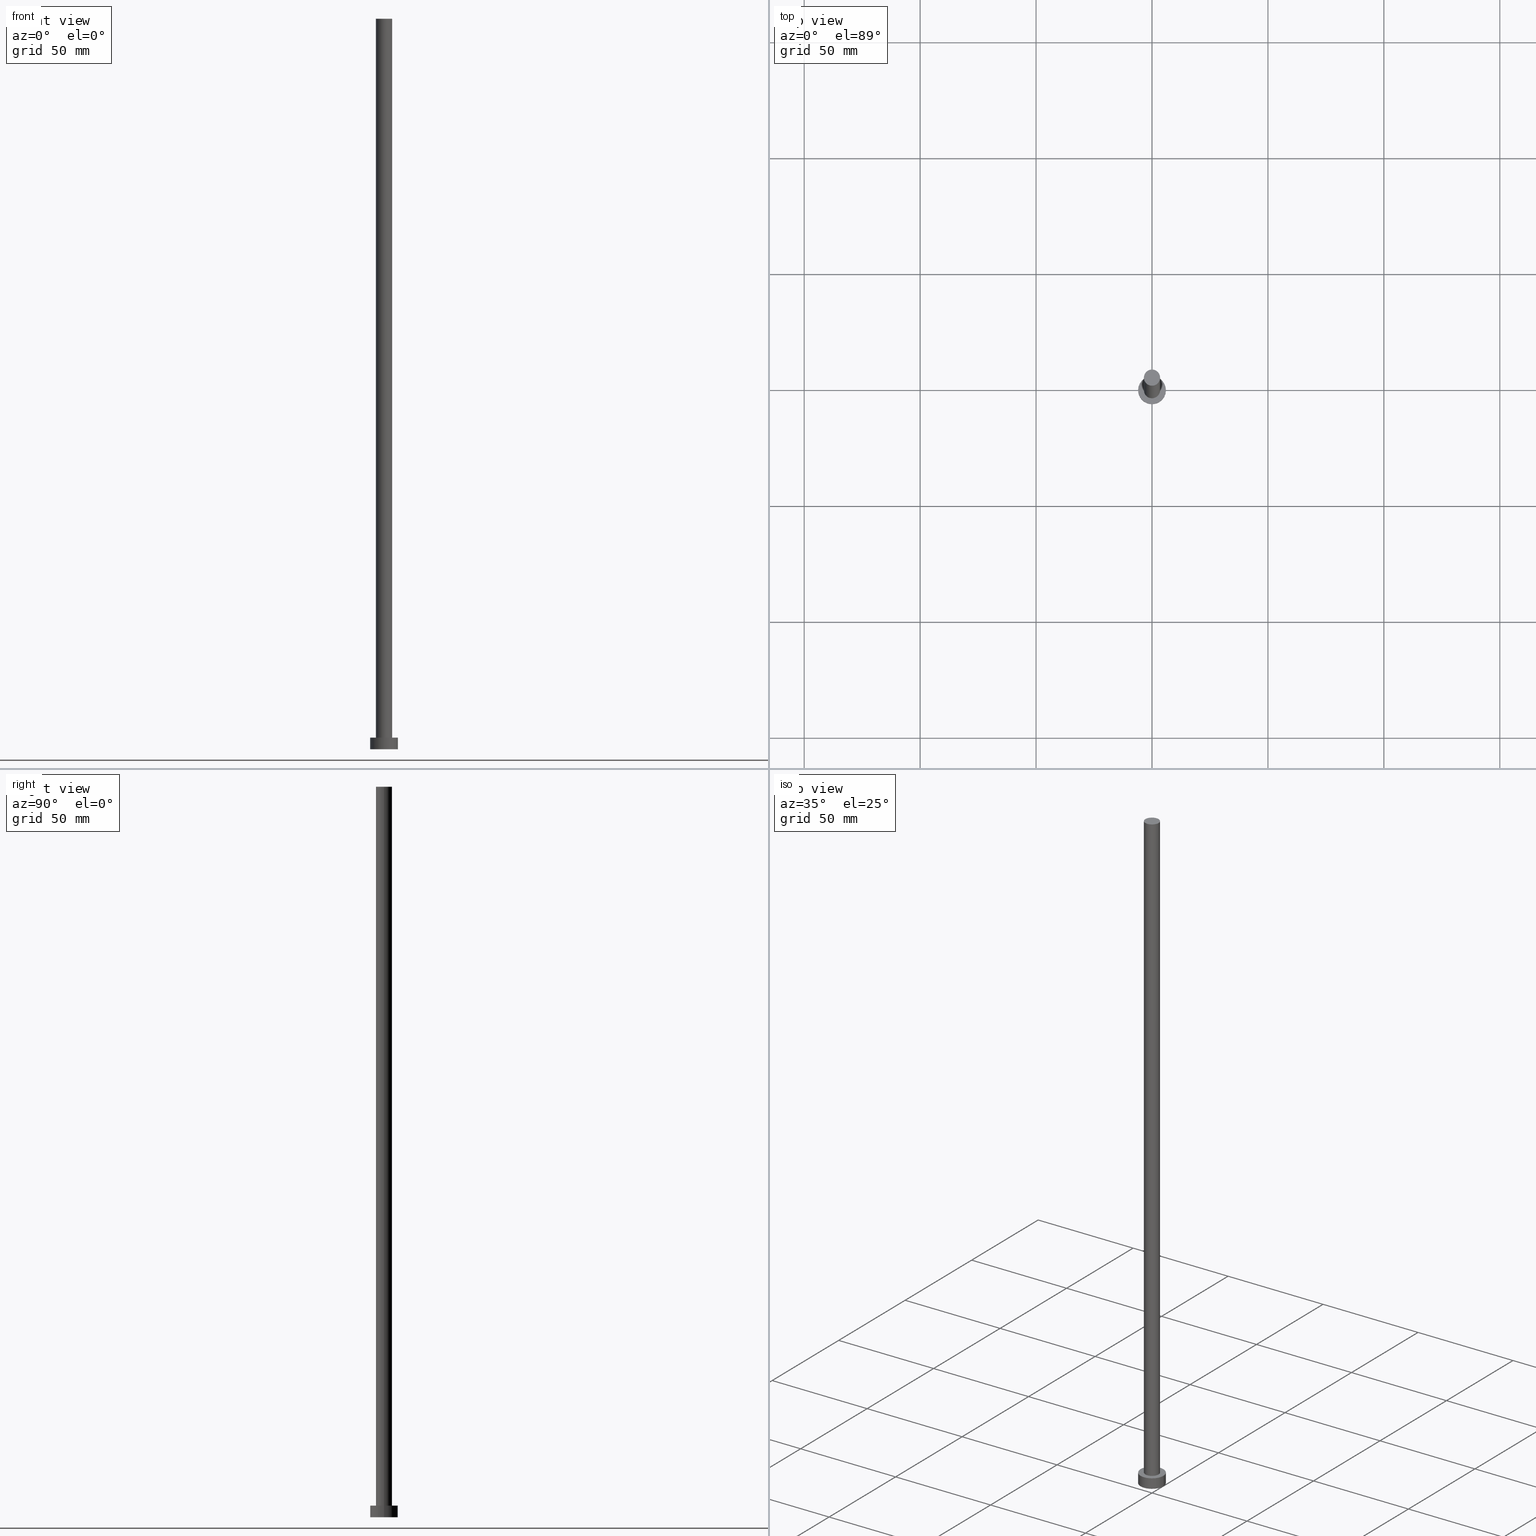
[diagram: canonical four-view strip — front | top / right | iso, engineering-drawing reading convention]
A machine part, canonical four-view strip (front | top / right | iso — engineering-drawing reading convention). The complete STEP part file that produces these views, byte-faithful:
ISO-10303-21;
HEADER;
FILE_DESCRIPTION (( 'STEP AP203' ),
    '1' );
FILE_NAME ('e96d.STEP',
    '2023-02-12T11:29:01',
    ( '' ),
    ( '' ),
    'SwSTEP 2.0',
    'SolidWorks 2019',
    '' );
FILE_SCHEMA (( 'CONFIG_CONTROL_DESIGN' ));
ENDSEC;

DATA;
#1 = DIRECTION ( 'NONE',  ( 0.000000000000000000, 0.000000000000000000, 1.000000000000000000 ) ) ;
#2 = ADVANCED_FACE ( 'NONE', ( #240 ), #137, .T. ) ;
#3 = CC_DESIGN_DATE_AND_TIME_ASSIGNMENT ( #205, #33, ( #111 ) ) ;
#4 = ORIENTED_EDGE ( 'NONE', *, *, #105, .T. ) ;
#5 = CIRCLE ( 'NONE', #24, 6.000000000000000888 ) ;
#6 = CC_DESIGN_SECURITY_CLASSIFICATION ( #139, ( #131 ) ) ;
#7 = PERSON_AND_ORGANIZATION_ROLE ( 'creator' ) ;
#8 = EDGE_LOOP ( 'NONE', ( #130, #37, #157, #100 ) ) ;
#9 = ORIENTED_EDGE ( 'NONE', *, *, #36, .F. ) ;
#10 = DIRECTION ( 'NONE',  ( -0.000000000000000000, -0.000000000000000000, -1.000000000000000000 ) ) ;
#11 = CARTESIAN_POINT ( 'NONE',  ( 0.000000000000000000, 0.000000000000000000, 0.000000000000000000 ) ) ;
#12 = CC_DESIGN_APPROVAL ( #187, ( #111 ) ) ;
#13 = APPROVAL ( #156, 'NEUR�EN�' ) ;
#14 = CARTESIAN_POINT ( 'NONE',  ( 3.500000000000000000, 4.286263797015736595E-16, 315.0000000000000000 ) ) ;
#15 = FACE_OUTER_BOUND ( 'NONE', #231, .T. ) ;
#16 = PLANE ( 'NONE',  #234 ) ;
#17 = ORIENTED_EDGE ( 'NONE', *, *, #232, .F. ) ;
#18 = DIRECTION ( 'NONE',  ( -0.000000000000000000, -0.000000000000000000, -1.000000000000000000 ) ) ;
#19 = CYLINDRICAL_SURFACE ( 'NONE', #74, 6.000000000000000888 ) ;
#20 = ADVANCED_FACE ( 'NONE', ( #174 ), #19, .T. ) ;
#21 = ORIENTED_EDGE ( 'NONE', *, *, #172, .T. ) ;
#22 = DIRECTION ( 'NONE',  ( -1.000000000000000000, 0.000000000000000000, 0.000000000000000000 ) ) ;
#23 = DIRECTION ( 'NONE',  ( -1.000000000000000000, 0.000000000000000000, 0.000000000000000000 ) ) ;
#24 = AXIS2_PLACEMENT_3D ( 'NONE', #63, #47, #64 ) ;
#25 = CIRCLE ( 'NONE', #95, 6.000000000000000888 ) ;
#26 = DATE_TIME_ROLE ( 'classification_date' ) ;
#27 = ORIENTED_EDGE ( 'NONE', *, *, #172, .F. ) ;
#28 = DIRECTION ( 'NONE',  ( 0.000000000000000000, 0.000000000000000000, 1.000000000000000000 ) ) ;
#29 = COORDINATED_UNIVERSAL_TIME_OFFSET ( 1, 0, .AHEAD. ) ;
#30 = APPLICATION_CONTEXT ( 'configuration controlled 3d designs of mechanical parts and assemblies' ) ;
#31 = FACE_BOUND ( 'NONE', #69, .T. ) ;
#32 = ORIENTED_EDGE ( 'NONE', *, *, #225, .F. ) ;
#33 = DATE_TIME_ROLE ( 'creation_date' ) ;
#34 = CARTESIAN_POINT ( 'NONE',  ( 6.000000000000000888, 7.347880794884120722E-16, 5.000000000000000000 ) ) ;
#35 = CARTESIAN_POINT ( 'NONE',  ( 0.000000000000000000, 0.000000000000000000, 315.0000000000000000 ) ) ;
#36 = EDGE_CURVE ( 'NONE', #134, #113, #189, .T. ) ;
#37 = ORIENTED_EDGE ( 'NONE', *, *, #75, .F. ) ;
#38 = CC_DESIGN_DATE_AND_TIME_ASSIGNMENT ( #200, #26, ( #139 ) ) ;
#39 = AXIS2_PLACEMENT_3D ( 'NONE', #241, #85, #165 ) ;
#40 = CC_DESIGN_APPROVAL ( #129, ( #131 ) ) ;
#41 = PERSON_AND_ORGANIZATION_ROLE ( 'classification_officer' ) ;
#42 = CC_DESIGN_APPROVAL ( #13, ( #139 ) ) ;
#43 = CARTESIAN_POINT ( 'NONE',  ( 0.000000000000000000, 0.000000000000000000, 5.000000000000000000 ) ) ;
#44 = CALENDAR_DATE ( 2023, 12, 2 ) ;
#45 = VERTEX_POINT ( 'NONE', #104 ) ;
#46 = DIRECTION ( 'NONE',  ( 1.000000000000000000, 0.000000000000000000, 0.000000000000000000 ) ) ;
#47 = DIRECTION ( 'NONE',  ( 0.000000000000000000, 0.000000000000000000, 1.000000000000000000 ) ) ;
#48 = PLANE ( 'NONE',  #82 ) ;
#49 = LOCAL_TIME ( 12, 29, 1.000000000000000000, #66 ) ;
#50 = DIRECTION ( 'NONE',  ( -1.000000000000000000, 0.000000000000000000, 0.000000000000000000 ) ) ;
#51 = ORIENTED_EDGE ( 'NONE', *, *, #236, .F. ) ;
#52 = CARTESIAN_POINT ( 'NONE',  ( 0.000000000000000000, 0.000000000000000000, 315.0000000000000000 ) ) ;
#53 = AXIS2_PLACEMENT_3D ( 'NONE', #169, #235, #132 ) ;
#54 = FACE_OUTER_BOUND ( 'NONE', #94, .T. ) ;
#55 = VECTOR ( 'NONE', #10, 1000.000000000000000 ) ;
#56 = LOCAL_TIME ( 12, 29, 1.000000000000000000, #97 ) ;
#57 = DIRECTION ( 'NONE',  ( 1.000000000000000000, 0.000000000000000000, 0.000000000000000000 ) ) ;
#58 = CARTESIAN_POINT ( 'NONE',  ( 0.000000000000000000, 0.000000000000000000, 5.000000000000000000 ) ) ;
#59 = PERSON_AND_ORGANIZATION ( #194, #108 ) ;
#60 = EDGE_LOOP ( 'NONE', ( #51, #4, #125, #32 ) ) ;
#61 = CARTESIAN_POINT ( 'NONE',  ( 0.000000000000000000, 0.000000000000000000, 5.000000000000000000 ) ) ;
#62 = CALENDAR_DATE ( 2023, 12, 2 ) ;
#63 = CARTESIAN_POINT ( 'NONE',  ( 0.000000000000000000, 0.000000000000000000, 5.000000000000000000 ) ) ;
#64 = DIRECTION ( 'NONE',  ( 1.000000000000000000, 0.000000000000000000, 0.000000000000000000 ) ) ;
#65 = FACE_OUTER_BOUND ( 'NONE', #8, .T. ) ;
#66 = COORDINATED_UNIVERSAL_TIME_OFFSET ( 1, 0, .AHEAD. ) ;
#67 = DIRECTION ( 'NONE',  ( 1.000000000000000000, 0.000000000000000000, -0.000000000000000000 ) ) ;
#68 = ADVANCED_FACE ( 'NONE', ( #31, #15 ), #48, .T. ) ;
#69 = EDGE_LOOP ( 'NONE', ( #204, #196 ) ) ;
#70 =( LENGTH_UNIT ( ) NAMED_UNIT ( * ) SI_UNIT ( .MILLI., .METRE. ) );
#71 = LOCAL_TIME ( 12, 29, 1.000000000000000000, #119 ) ;
#72 = CARTESIAN_POINT ( 'NONE',  ( 0.000000000000000000, 0.000000000000000000, 0.000000000000000000 ) ) ;
#73 = APPLICATION_CONTEXT ( 'configuration controlled 3d designs of mechanical parts and assemblies' ) ;
#74 = AXIS2_PLACEMENT_3D ( 'NONE', #58, #115, #23 ) ;
#75 = EDGE_CURVE ( 'NONE', #136, #244, #5, .T. ) ;
#76 = UNCERTAINTY_MEASURE_WITH_UNIT (LENGTH_MEASURE( 1.000000000000000082E-05 ), #70, 'distance_accuracy_value', 'NONE');
#77 = APPROVAL_DATE_TIME ( #142, #129 ) ;
#78 = DIRECTION ( 'NONE',  ( 0.000000000000000000, 0.000000000000000000, 1.000000000000000000 ) ) ;
#79 = PRODUCT_DEFINITION_SHAPE ( 'NONE', 'NONE',  #111 ) ;
#80 = APPROVAL_DATE_TIME ( #175, #13 ) ;
#81 = ORIENTED_EDGE ( 'NONE', *, *, #232, .T. ) ;
#82 = AXIS2_PLACEMENT_3D ( 'NONE', #61, #127, #67 ) ;
#83 = CARTESIAN_POINT ( 'NONE',  ( -6.000000000000000888, 0.000000000000000000, 0.000000000000000000 ) ) ;
#84 = APPLICATION_PROTOCOL_DEFINITION ( 'international standard', 'config_control_design', 1994, #73 ) ;
#85 = DIRECTION ( 'NONE',  ( 0.000000000000000000, 0.000000000000000000, 1.000000000000000000 ) ) ;
#86 = PERSON_AND_ORGANIZATION ( #194, #108 ) ;
#87 = DIRECTION ( 'NONE',  ( -0.000000000000000000, -0.000000000000000000, -1.000000000000000000 ) ) ;
#88 = CC_DESIGN_PERSON_AND_ORGANIZATION_ASSIGNMENT ( #179, #145, ( #131 ) ) ;
#89 = APPROVAL_PERSON_ORGANIZATION ( #213, #13, #192 ) ;
#90 = PRODUCT_RELATED_PRODUCT_CATEGORY ( 'detail', '', ( #138 ) ) ;
#91 = CIRCLE ( 'NONE', #162, 3.500000000000000000 ) ;
#92 = DIRECTION ( 'NONE',  ( 1.000000000000000000, 0.000000000000000000, -0.000000000000000000 ) ) ;
#93 = COORDINATED_UNIVERSAL_TIME_OFFSET ( 1, 0, .AHEAD. ) ;
#94 = EDGE_LOOP ( 'NONE', ( #9, #197 ) ) ;
#95 = AXIS2_PLACEMENT_3D ( 'NONE', #11, #78, #160 ) ;
#96 = PERSON_AND_ORGANIZATION ( #194, #108 ) ;
#97 = COORDINATED_UNIVERSAL_TIME_OFFSET ( 1, 0, .AHEAD. ) ;
#98 = CYLINDRICAL_SURFACE ( 'NONE', #193, 3.500000000000000000 ) ;
#99 = EDGE_CURVE ( 'NONE', #210, #173, #251, .T. ) ;
#100 = ORIENTED_EDGE ( 'NONE', *, *, #36, .T. ) ;
#101 = CARTESIAN_POINT ( 'NONE',  ( 3.500000000000000000, 4.286263797015736595E-16, 315.0000000000000000 ) ) ;
#102 = APPROVAL_ROLE ( '' ) ;
#103 = ORIENTED_EDGE ( 'NONE', *, *, #216, .T. ) ;
#104 = CARTESIAN_POINT ( 'NONE',  ( 3.500000000000000000, 4.286263797015736595E-16, 5.000000000000000000 ) ) ;
#105 = EDGE_CURVE ( 'NONE', #244, #113, #224, .T. ) ;
#106 = CARTESIAN_POINT ( 'NONE',  ( 0.000000000000000000, 0.000000000000000000, 315.0000000000000000 ) ) ;
#107 = CLOSED_SHELL ( 'NONE', ( #2, #20, #140, #68, #230, #176, #118 ) ) ;
#108 = ORGANIZATION ( 'NEUR�EN�', 'NEUR�EN�', '' ) ;
#109 = ORIENTED_EDGE ( 'NONE', *, *, #99, .T. ) ;
#110 = ORIENTED_EDGE ( 'NONE', *, *, #75, .T. ) ;
#111 = PRODUCT_DEFINITION ( 'NEZN�M�', '', #131, #128 ) ;
#112 =( GEOMETRIC_REPRESENTATION_CONTEXT ( 3 ) GLOBAL_UNCERTAINTY_ASSIGNED_CONTEXT ( ( #76 ) ) GLOBAL_UNIT_ASSIGNED_CONTEXT ( ( #70, #255, #220 ) ) REPRESENTATION_CONTEXT ( 'NONE', 'WORKASPACE' ) );
#113 = VERTEX_POINT ( 'NONE', #161 ) ;
#114 = DIRECTION ( 'NONE',  ( -0.000000000000000000, -0.000000000000000000, -1.000000000000000000 ) ) ;
#115 = DIRECTION ( 'NONE',  ( -0.000000000000000000, -0.000000000000000000, -1.000000000000000000 ) ) ;
#116 = VERTEX_POINT ( 'NONE', #147 ) ;
#117 = ORIENTED_EDGE ( 'NONE', *, *, #170, .T. ) ;
#118 = ADVANCED_FACE ( 'NONE', ( #143 ), #180, .T. ) ;
#119 = COORDINATED_UNIVERSAL_TIME_OFFSET ( 1, 0, .AHEAD. ) ;
#120 = FACE_OUTER_BOUND ( 'NONE', #146, .T. ) ;
#121 = PERSON_AND_ORGANIZATION ( #194, #108 ) ;
#122 = ORIENTED_EDGE ( 'NONE', *, *, #148, .F. ) ;
#123 = CC_DESIGN_PERSON_AND_ORGANIZATION_ASSIGNMENT ( #96, #7, ( #111 ) ) ;
#124 = CIRCLE ( 'NONE', #53, 6.000000000000000888 ) ;
#125 = ORIENTED_EDGE ( 'NONE', *, *, #191, .T. ) ;
#126 = DIRECTION ( 'NONE',  ( 0.000000000000000000, 0.000000000000000000, 1.000000000000000000 ) ) ;
#127 = DIRECTION ( 'NONE',  ( 0.000000000000000000, 0.000000000000000000, 1.000000000000000000 ) ) ;
#128 = DESIGN_CONTEXT ( 'detailed design', #73, 'design' ) ;
#129 = APPROVAL ( #166, 'NEUR�EN�' ) ;
#130 = ORIENTED_EDGE ( 'NONE', *, *, #105, .F. ) ;
#131 = PRODUCT_DEFINITION_FORMATION_WITH_SPECIFIED_SOURCE ( 'LIBOVOLN�', '', #138, .NOT_KNOWN. ) ;
#132 = DIRECTION ( 'NONE',  ( 1.000000000000000000, 0.000000000000000000, 0.000000000000000000 ) ) ;
#133 = APPLICATION_PROTOCOL_DEFINITION ( 'international standard', 'config_control_design', 1994, #30 ) ;
#134 = VERTEX_POINT ( 'NONE', #83 ) ;
#135 = CC_DESIGN_PERSON_AND_ORGANIZATION_ASSIGNMENT ( #243, #41, ( #139 ) ) ;
#136 = VERTEX_POINT ( 'NONE', #249 ) ;
#137 = CYLINDRICAL_SURFACE ( 'NONE', #228, 3.500000000000000000 ) ;
#138 = PRODUCT ( 'e96d', 'e96d', '', ( #217 ) ) ;
#139 = SECURITY_CLASSIFICATION ( '', '', #226 ) ;
#140 = ADVANCED_FACE ( 'NONE', ( #65 ), #245, .T. ) ;
#141 = DIRECTION ( 'NONE',  ( -1.000000000000000000, 0.000000000000000000, 0.000000000000000000 ) ) ;
#142 = DATE_AND_TIME ( #62, #49 ) ;
#143 = FACE_OUTER_BOUND ( 'NONE', #218, .T. ) ;
#144 = DIRECTION ( 'NONE',  ( 0.000000000000000000, 0.000000000000000000, 1.000000000000000000 ) ) ;
#145 = PERSON_AND_ORGANIZATION_ROLE ( 'creator' ) ;
#146 = EDGE_LOOP ( 'NONE', ( #122, #195, #21, #103 ) ) ;
#147 = CARTESIAN_POINT ( 'NONE',  ( -3.500000000000000000, 0.000000000000000000, 5.000000000000000000 ) ) ;
#148 = EDGE_CURVE ( 'NONE', #173, #45, #227, .T. ) ;
#149 = ORIENTED_EDGE ( 'NONE', *, *, #236, .T. ) ;
#150 = CARTESIAN_POINT ( 'NONE',  ( -6.000000000000000888, 0.000000000000000000, 5.000000000000000000 ) ) ;
#151 = LOCAL_TIME ( 12, 29, 1.000000000000000000, #29 ) ;
#152 = DIRECTION ( 'NONE',  ( 0.000000000000000000, 0.000000000000000000, 1.000000000000000000 ) ) ;
#153 = CC_DESIGN_PERSON_AND_ORGANIZATION_ASSIGNMENT ( #59, #178, ( #138 ) ) ;
#154 = DIRECTION ( 'NONE',  ( 1.000000000000000000, 0.000000000000000000, 0.000000000000000000 ) ) ;
#155 = AXIS2_PLACEMENT_3D ( 'NONE', #43, #144, #46 ) ;
#156 = APPROVAL_STATUS ( 'not_yet_approved' ) ;
#157 = ORIENTED_EDGE ( 'NONE', *, *, #225, .T. ) ;
#158 = APPROVAL_PERSON_ORGANIZATION ( #86, #129, #250 ) ;
#159 = PERSON_AND_ORGANIZATION_ROLE ( 'design_supplier' ) ;
#160 = DIRECTION ( 'NONE',  ( 1.000000000000000000, 0.000000000000000000, 0.000000000000000000 ) ) ;
#161 = CARTESIAN_POINT ( 'NONE',  ( 6.000000000000000888, 7.347880794884120722E-16, 0.000000000000000000 ) ) ;
#162 = AXIS2_PLACEMENT_3D ( 'NONE', #52, #1, #154 ) ;
#163 = CARTESIAN_POINT ( 'NONE',  ( -3.500000000000000000, 0.000000000000000000, 315.0000000000000000 ) ) ;
#164 = APPROVAL_DATE_TIME ( #246, #187 ) ;
#165 = DIRECTION ( 'NONE',  ( 1.000000000000000000, 0.000000000000000000, 0.000000000000000000 ) ) ;
#166 = APPROVAL_STATUS ( 'not_yet_approved' ) ;
#167 = DIRECTION ( 'NONE',  ( 0.000000000000000000, 0.000000000000000000, 1.000000000000000000 ) ) ;
#168 = DIRECTION ( 'NONE',  ( 1.000000000000000000, 0.000000000000000000, 0.000000000000000000 ) ) ;
#169 = CARTESIAN_POINT ( 'NONE',  ( 0.000000000000000000, 0.000000000000000000, 5.000000000000000000 ) ) ;
#170 = EDGE_CURVE ( 'NONE', #45, #116, #182, .T. ) ;
#171 = ORIENTED_EDGE ( 'NONE', *, *, #148, .T. ) ;
#172 = EDGE_CURVE ( 'NONE', #210, #116, #229, .T. ) ;
#173 = VERTEX_POINT ( 'NONE', #14 ) ;
#174 = FACE_OUTER_BOUND ( 'NONE', #60, .T. ) ;
#175 = DATE_AND_TIME ( #177, #190 ) ;
#176 = ADVANCED_FACE ( 'NONE', ( #120 ), #98, .T. ) ;
#177 = CALENDAR_DATE ( 2023, 12, 2 ) ;
#178 = PERSON_AND_ORGANIZATION_ROLE ( 'design_owner' ) ;
#179 = PERSON_AND_ORGANIZATION ( #194, #108 ) ;
#180 = PLANE ( 'NONE',  #198 ) ;
#181 = CARTESIAN_POINT ( 'NONE',  ( -3.500000000000000000, 0.000000000000000000, 315.0000000000000000 ) ) ;
#182 = CIRCLE ( 'NONE', #155, 3.500000000000000000 ) ;
#183 = AXIS2_PLACEMENT_3D ( 'NONE', #201, #28, #168 ) ;
#184 = CALENDAR_DATE ( 2023, 12, 2 ) ;
#185 = DIRECTION ( 'NONE',  ( -0.000000000000000000, -0.000000000000000000, -1.000000000000000000 ) ) ;
#186 = APPROVAL_STATUS ( 'not_yet_approved' ) ;
#187 = APPROVAL ( #186, 'NEUR�EN�' ) ;
#188 = DIRECTION ( 'NONE',  ( -0.000000000000000000, -0.000000000000000000, -1.000000000000000000 ) ) ;
#189 = CIRCLE ( 'NONE', #39, 6.000000000000000888 ) ;
#190 = LOCAL_TIME ( 12, 29, 1.000000000000000000, #93 ) ;
#191 = EDGE_CURVE ( 'NONE', #113, #134, #25, .T. ) ;
#192 = APPROVAL_ROLE ( '' ) ;
#193 = AXIS2_PLACEMENT_3D ( 'NONE', #35, #188, #141 ) ;
#194 = PERSON ( 'NEUR�EN�', 'NEUR�EN�', 'NEUR�EN�', ('NEUR�EN�'), ('NEUR�EN�'), ('NEUR�EN�') ) ;
#195 = ORIENTED_EDGE ( 'NONE', *, *, #99, .F. ) ;
#196 = ORIENTED_EDGE ( 'NONE', *, *, #170, .F. ) ;
#197 = ORIENTED_EDGE ( 'NONE', *, *, #191, .F. ) ;
#198 = AXIS2_PLACEMENT_3D ( 'NONE', #106, #167, #203 ) ;
#199 = CIRCLE ( 'NONE', #183, 3.500000000000000000 ) ;
#200 = DATE_AND_TIME ( #44, #71 ) ;
#201 = CARTESIAN_POINT ( 'NONE',  ( 0.000000000000000000, 0.000000000000000000, 5.000000000000000000 ) ) ;
#202 = CALENDAR_DATE ( 2023, 12, 2 ) ;
#203 = DIRECTION ( 'NONE',  ( 1.000000000000000000, 0.000000000000000000, -0.000000000000000000 ) ) ;
#204 = ORIENTED_EDGE ( 'NONE', *, *, #216, .F. ) ;
#205 = DATE_AND_TIME ( #202, #151 ) ;
#206 = EDGE_LOOP ( 'NONE', ( #17, #171, #117, #27 ) ) ;
#207 = DIRECTION ( 'NONE',  ( 1.000000000000000000, 0.000000000000000000, 0.000000000000000000 ) ) ;
#208 = CC_DESIGN_PERSON_AND_ORGANIZATION_ASSIGNMENT ( #121, #159, ( #131 ) ) ;
#209 = DIRECTION ( 'NONE',  ( -0.000000000000000000, -0.000000000000000000, -1.000000000000000000 ) ) ;
#210 = VERTEX_POINT ( 'NONE', #163 ) ;
#211 = AXIS2_PLACEMENT_3D ( 'NONE', #252, #126, #207 ) ;
#212 = AXIS2_PLACEMENT_3D ( 'NONE', #239, #238, #57 ) ;
#213 = PERSON_AND_ORGANIZATION ( #194, #108 ) ;
#214 = ADVANCED_BREP_SHAPE_REPRESENTATION ( 'e96d', ( #221, #212 ), #112 ) ;
#215 = CARTESIAN_POINT ( 'NONE',  ( 6.000000000000000888, 7.347880794884120722E-16, 5.000000000000000000 ) ) ;
#216 = EDGE_CURVE ( 'NONE', #116, #45, #199, .T. ) ;
#217 = MECHANICAL_CONTEXT ( 'NONE', #30, 'mechanical' ) ;
#218 = EDGE_LOOP ( 'NONE', ( #109, #81 ) ) ;
#219 = CARTESIAN_POINT ( 'NONE',  ( 0.000000000000000000, 0.000000000000000000, 315.0000000000000000 ) ) ;
#220 =( NAMED_UNIT ( * ) SI_UNIT ( $, .STERADIAN. ) SOLID_ANGLE_UNIT ( ) );
#221 = MANIFOLD_SOLID_BREP ( 'P�idat vysunut�m3', #107 ) ;
#222 = VECTOR ( 'NONE', #209, 1000.000000000000000 ) ;
#223 = PERSON_AND_ORGANIZATION ( #194, #108 ) ;
#224 = LINE ( 'NONE', #34, #55 ) ;
#225 = EDGE_CURVE ( 'NONE', #136, #134, #254, .T. ) ;
#226 = SECURITY_CLASSIFICATION_LEVEL ( 'unclassified' ) ;
#227 = LINE ( 'NONE', #101, #237 ) ;
#228 = AXIS2_PLACEMENT_3D ( 'NONE', #219, #114, #22 ) ;
#229 = LINE ( 'NONE', #181, #222 ) ;
#230 = ADVANCED_FACE ( 'NONE', ( #54 ), #16, .F. ) ;
#231 = EDGE_LOOP ( 'NONE', ( #110, #149 ) ) ;
#232 = EDGE_CURVE ( 'NONE', #173, #210, #91, .T. ) ;
#233 = AXIS2_PLACEMENT_3D ( 'NONE', #247, #87, #50 ) ;
#234 = AXIS2_PLACEMENT_3D ( 'NONE', #72, #152, #92 ) ;
#235 = DIRECTION ( 'NONE',  ( 0.000000000000000000, 0.000000000000000000, 1.000000000000000000 ) ) ;
#236 = EDGE_CURVE ( 'NONE', #244, #136, #124, .T. ) ;
#237 = VECTOR ( 'NONE', #185, 1000.000000000000000 ) ;
#238 = DIRECTION ( 'NONE',  ( 0.000000000000000000, 0.000000000000000000, 1.000000000000000000 ) ) ;
#239 = CARTESIAN_POINT ( 'NONE',  ( 0.000000000000000000, 0.000000000000000000, 0.000000000000000000 ) ) ;
#240 = FACE_OUTER_BOUND ( 'NONE', #206, .T. ) ;
#241 = CARTESIAN_POINT ( 'NONE',  ( 0.000000000000000000, 0.000000000000000000, 0.000000000000000000 ) ) ;
#242 = SHAPE_DEFINITION_REPRESENTATION ( #79, #214 ) ;
#243 = PERSON_AND_ORGANIZATION ( #194, #108 ) ;
#244 = VERTEX_POINT ( 'NONE', #215 ) ;
#245 = CYLINDRICAL_SURFACE ( 'NONE', #233, 6.000000000000000888 ) ;
#246 = DATE_AND_TIME ( #184, #56 ) ;
#247 = CARTESIAN_POINT ( 'NONE',  ( 0.000000000000000000, 0.000000000000000000, 5.000000000000000000 ) ) ;
#248 = APPROVAL_PERSON_ORGANIZATION ( #223, #187, #102 ) ;
#249 = CARTESIAN_POINT ( 'NONE',  ( -6.000000000000000888, 0.000000000000000000, 5.000000000000000000 ) ) ;
#250 = APPROVAL_ROLE ( '' ) ;
#251 = CIRCLE ( 'NONE', #211, 3.500000000000000000 ) ;
#252 = CARTESIAN_POINT ( 'NONE',  ( 0.000000000000000000, 0.000000000000000000, 315.0000000000000000 ) ) ;
#253 = VECTOR ( 'NONE', #18, 1000.000000000000000 ) ;
#254 = LINE ( 'NONE', #150, #253 ) ;
#255 =( NAMED_UNIT ( * ) PLANE_ANGLE_UNIT ( ) SI_UNIT ( $, .RADIAN. ) );
ENDSEC;
END-ISO-10303-21;
